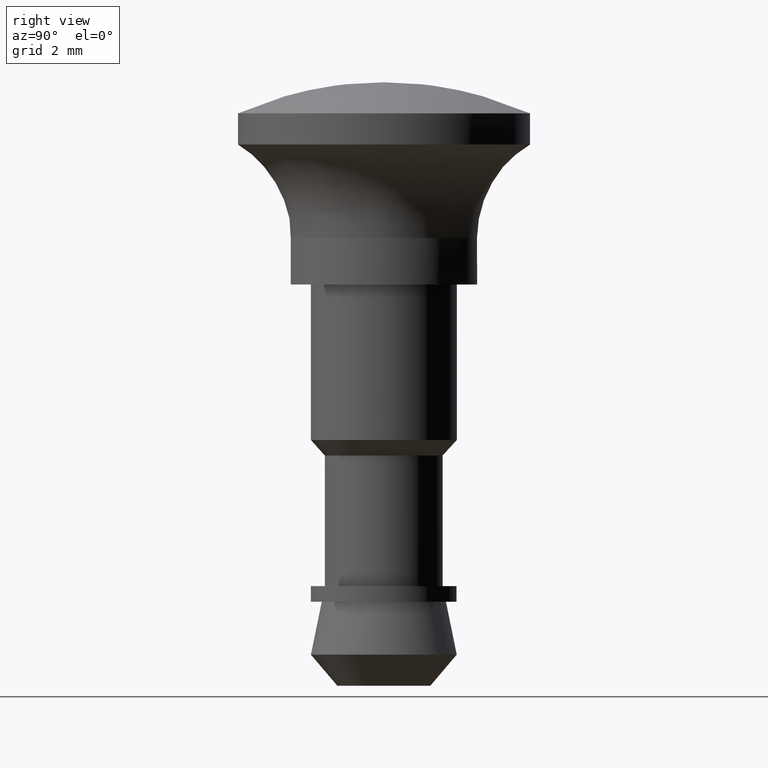
[diagram: clean part render]
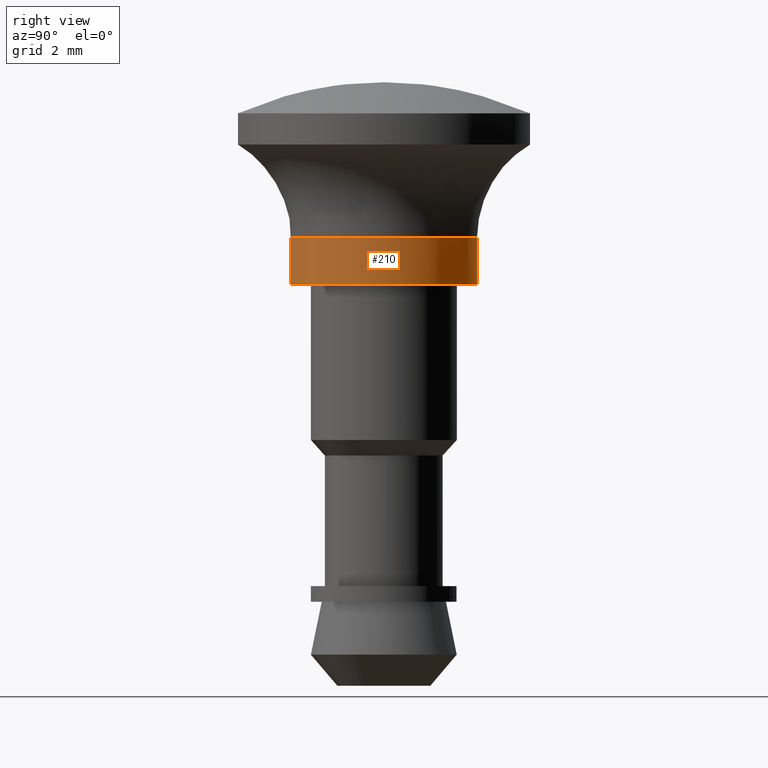
[diagram: same view with one face highlighted and labeled with its STEP entity id]
A machine part, right view. The second image highlights one B-rep face of the part: STEP entity #210.
In plain terms, the highlighted face is a freeform B-spline surface patch.
Its self-contained STEP definition (entity closure, byte-faithful):
#44=CARTESIAN_POINT('',(-2.808430736329971,-1.054853923174716,1.535450000000000));
#45=CARTESIAN_POINT('',(-2.966892058095451,-0.632968355146225,1.535450000000000));
#46=CARTESIAN_POINT('',(-2.994404395265600,-0.183145618604571,1.535450000000000));
#47=CARTESIAN_POINT('',(-3.177550013870171,2.811258776661029,1.535450000000001));
#48=CARTESIAN_POINT('',(-0.183145618604571,2.994404395265600,1.535450000000000));
#49=CARTESIAN_POINT('',(2.811258776661029,3.177550013870171,1.535450000000001));
#50=CARTESIAN_POINT('',(2.994404395265600,0.183145618604571,1.535450000000000));
#51=CARTESIAN_POINT('',(3.177550013870171,-2.811258776661029,1.535450000000001));
#52=CARTESIAN_POINT('',(0.183145618604571,-2.994404395265600,1.535450000000000));
#53=CARTESIAN_POINT('',(-2.808430736329971,-1.054853923174716,-0.038386250000000));
#54=CARTESIAN_POINT('',(-2.966892058095451,-0.632968355146225,-0.038386250000000));
#55=CARTESIAN_POINT('',(-2.994404395265600,-0.183145618604571,-0.038386250000000));
#56=CARTESIAN_POINT('',(-3.177550013870171,2.811258776661029,-0.038386250000000));
#57=CARTESIAN_POINT('',(-0.183145618604571,2.994404395265600,-0.038386250000000));
#58=CARTESIAN_POINT('',(2.811258776661029,3.177550013870171,-0.038386250000000));
#59=CARTESIAN_POINT('',(2.994404395265600,0.183145618604571,-0.038386250000000));
#60=CARTESIAN_POINT('',(3.177550013870171,-2.811258776661029,-0.038386250000000));
#61=CARTESIAN_POINT('',(0.183145618604571,-2.994404395265600,-0.038386250000000));
#69=(BOUNDED_SURFACE()B_SPLINE_SURFACE(2,1,((#44,#53),(#45,#54),(#46,#55),(#47,#56),(#48,#57),(#49,#58),(#50,#59),(#51,#60),(#52,#61)),.UNSPECIFIED.,.F.,.F.,.U.)B_SPLINE_SURFACE_WITH_KNOTS((3,2,2,2,3),(2,2),(0.0,0.994112549695428,5.964675298172567,10.935238046649710,15.905800795126851),(0.0,1.0),.UNSPECIFIED.)GEOMETRIC_REPRESENTATION_ITEM()RATIONAL_B_SPLINE_SURFACE(((0.906274169979695,0.906274169979695),(0.941421356237309,0.941421356237309),(1.0,1.0),(0.707106781186548,0.707106781186548),(1.0,1.0),(0.707106781186548,0.707106781186548),(1.0,1.0),(0.707106781186548,0.707106781186548),(1.0,1.0)))REPRESENTATION_ITEM('')SURFACE());
#70=CARTESIAN_POINT('',(-2.808430836194138,-1.054853657297454,1.498000000000001));
#71=VERTEX_POINT('',#70);
#72=CARTESIAN_POINT('',(-3.0,0.0,1.498000000000000));
#73=VERTEX_POINT('',#72);
#74=CARTESIAN_POINT('',(-2.808430836194138,-1.054853657297454,1.498000000000001));
#75=CARTESIAN_POINT('',(-3.000000000000001,-0.544821864819847,1.498000000000000));
#76=CARTESIAN_POINT('',(-3.0,0.0,1.498000000000000));
#84=(BOUNDED_CURVE()B_SPLINE_CURVE(2,(#74,#75,#76),.UNSPECIFIED.,.F.,.U.)B_SPLINE_CURVE_WITH_KNOTS((3,3),(0.940284200805494,1.0),.UNSPECIFIED.)CURVE()GEOMETRIC_REPRESENTATION_ITEM()RATIONAL_B_SPLINE_CURVE((0.893499591234335,0.930038589439614,1.0))REPRESENTATION_ITEM(''));
#85=EDGE_CURVE('',#71,#73,#84,.T.);
#86=ORIENTED_EDGE('',*,*,#85,.T.);
#87=CARTESIAN_POINT('',(-2.470599186242353,1.701804824575161,1.497997071134931));
#88=VERTEX_POINT('',#87);
#89=CARTESIAN_POINT('',(-3.0,0.0,1.498000000000000));
#90=CARTESIAN_POINT('',(-3.000000000000595,0.933245938866376,1.497998535567466));
#91=CARTESIAN_POINT('',(-2.470599186242354,1.701804824575161,1.497997071134931));
#99=(BOUNDED_CURVE()B_SPLINE_CURVE(2,(#89,#90,#91),.UNSPECIFIED.,.F.,.U.)B_SPLINE_CURVE_WITH_KNOTS((3,3),(0.0,0.097429828936804),.UNSPECIFIED.)CURVE()GEOMETRIC_REPRESENTATION_ITEM()RATIONAL_B_SPLINE_CURVE((1.0,0.885853855177021,0.860677625265231))REPRESENTATION_ITEM(''));
#100=EDGE_CURVE('',#73,#88,#99,.T.);
#101=ORIENTED_EDGE('',*,*,#100,.T.);
#102=CARTESIAN_POINT('',(1.840320043787088,2.369223952363005,1.497997005857969));
#103=VERTEX_POINT('',#102);
#104=CARTESIAN_POINT('',(-2.470599186242354,1.701804824575161,1.497997071134931));
#105=CARTESIAN_POINT('',(-1.576372868560510,3.000000000001109,1.497997054939149));
#106=CARTESIAN_POINT('',(4.636831E-013,3.000000000001525,1.497997031628090));
#107=CARTESIAN_POINT('',(1.028260355751189,3.000000000001798,1.497997016422400));
#108=CARTESIAN_POINT('',(1.840320043787088,2.369223952363005,1.497997005857970));
#116=(BOUNDED_CURVE()B_SPLINE_CURVE(2,(#104,#105,#106,#107,#108),.UNSPECIFIED.,.F.,.U.)B_SPLINE_CURVE_WITH_KNOTS((3,2,3),(0.097429828936804,0.250000000000000,0.356116021520993),.UNSPECIFIED.)CURVE()GEOMETRIC_REPRESENTATION_ITEM()RATIONAL_B_SPLINE_CURVE((0.860677625265231,0.821252926009526,1.0,0.875677347556155,0.856895697210534))REPRESENTATION_ITEM(''));
#117=EDGE_CURVE('',#88,#103,#116,.T.);
#118=ORIENTED_EDGE('',*,*,#117,.T.);
#119=CARTESIAN_POINT('',(3.0,0.0,1.498000000000000));
#120=VERTEX_POINT('',#119);
#121=CARTESIAN_POINT('',(1.840320043787088,2.369223952363005,1.497997005857970));
#122=CARTESIAN_POINT('',(3.000000000000771,1.468430143625183,1.497998502928985));
#123=CARTESIAN_POINT('',(3.0,0.0,1.498000000000000));
#131=(BOUNDED_CURVE()B_SPLINE_CURVE(2,(#121,#122,#123),.UNSPECIFIED.,.F.,.U.)B_SPLINE_CURVE_WITH_KNOTS((3,3),(0.356116021520993,0.500000000000000),.UNSPECIFIED.)CURVE()GEOMETRIC_REPRESENTATION_ITEM()RATIONAL_B_SPLINE_CURVE((0.856895697210534,0.831429433630393,1.0))REPRESENTATION_ITEM(''));
#132=EDGE_CURVE('',#103,#120,#131,.T.);
#133=ORIENTED_EDGE('',*,*,#132,.T.);
#134=CARTESIAN_POINT('',(0.183141592714504,-2.994404641494152,1.498000000000070));
#135=VERTEX_POINT('',#134);
#136=CARTESIAN_POINT('',(3.0,0.0,1.498000000000000));
#137=CARTESIAN_POINT('',(3.0,-2.822122002065718,1.498000000000001));
#138=CARTESIAN_POINT('',(0.183141592714504,-2.994404641494152,1.498000000000070));
#146=(BOUNDED_CURVE()B_SPLINE_CURVE(2,(#136,#137,#138),.UNSPECIFIED.,.F.,.U.)B_SPLINE_CURVE_WITH_KNOTS((3,3),(0.500000000000000,0.739333194226175),.UNSPECIFIED.)CURVE()GEOMETRIC_REPRESENTATION_ITEM()RATIONAL_B_SPLINE_CURVE((1.0,0.719603721496762,0.976072538860020))REPRESENTATION_ITEM(''));
#147=EDGE_CURVE('',#120,#135,#146,.T.);
#148=ORIENTED_EDGE('',*,*,#147,.T.);
#149=CARTESIAN_POINT('',(0.183141641266411,-2.994404638524721,6.938894E-018));
#150=VERTEX_POINT('',#149);
#151=CARTESIAN_POINT('',(0.183141592714504,-2.994404641494152,1.498000000000070));
#152=CARTESIAN_POINT('',(0.183141641266411,-2.994404638524721,6.938894E-018));
#153=QUASI_UNIFORM_CURVE('',1,(#151,#152),.UNSPECIFIED.,.F.,.U.);
#154=EDGE_CURVE('',#135,#150,#153,.T.);
#155=ORIENTED_EDGE('',*,*,#154,.T.);
#156=CARTESIAN_POINT('',(3.0,0.0,0.0));
#157=VERTEX_POINT('',#156);
#158=CARTESIAN_POINT('',(3.0,0.0,0.0));
#159=CARTESIAN_POINT('',(3.000000000000000,-2.822121956221736,0.0));
#160=CARTESIAN_POINT('',(0.183141641266411,-2.994404638524720,6.938894E-018));
#168=(BOUNDED_CURVE()B_SPLINE_CURVE(2,(#158,#159,#160),.UNSPECIFIED.,.F.,.U.)B_SPLINE_CURVE_WITH_KNOTS((3,3),(0.500000000000000,0.739333191428464),.UNSPECIFIED.)CURVE()GEOMETRIC_REPRESENTATION_ITEM()RATIONAL_B_SPLINE_CURVE((1.0,0.719603724774485,0.976072532863981))REPRESENTATION_ITEM(''));
#169=EDGE_CURVE('',#157,#150,#168,.T.);
#170=ORIENTED_EDGE('',*,*,#169,.F.);
#171=CARTESIAN_POINT('',(-3.0,0.0,0.0));
#172=VERTEX_POINT('',#171);
#173=CARTESIAN_POINT('',(-3.0,0.0,0.0));
#174=CARTESIAN_POINT('',(-3.0,3.0,0.0));
#175=CARTESIAN_POINT('',(0.0,3.0,0.0));
#176=CARTESIAN_POINT('',(3.0,3.0,0.0));
#177=CARTESIAN_POINT('',(3.0,0.0,0.0));
#185=(BOUNDED_CURVE()B_SPLINE_CURVE(2,(#173,#174,#175,#176,#177),.UNSPECIFIED.,.F.,.U.)B_SPLINE_CURVE_WITH_KNOTS((3,2,3),(0.0,0.250000000000000,0.500000000000000),.UNSPECIFIED.)CURVE()GEOMETRIC_REPRESENTATION_ITEM()RATIONAL_B_SPLINE_CURVE((1.0,0.707106781186548,1.0,0.707106781186548,1.0))REPRESENTATION_ITEM(''));
#186=EDGE_CURVE('',#172,#157,#185,.T.);
#187=ORIENTED_EDGE('',*,*,#186,.F.);
#188=CARTESIAN_POINT('',(-2.808430834989721,-1.054853660504082,9.570633E-017));
#189=VERTEX_POINT('',#188);
#190=CARTESIAN_POINT('',(-2.808430834989720,-1.054853660504082,9.570633E-017));
#191=CARTESIAN_POINT('',(-3.000000000000000,-0.544821868358178,0.0));
#192=CARTESIAN_POINT('',(-3.0,0.0,0.0));
#200=(BOUNDED_CURVE()B_SPLINE_CURVE(2,(#190,#191,#192),.UNSPECIFIED.,.F.,.U.)B_SPLINE_CURVE_WITH_KNOTS((3,3),(0.940284200444804,1.0),.UNSPECIFIED.)CURVE()GEOMETRIC_REPRESENTATION_ITEM()RATIONAL_B_SPLINE_CURVE((0.893499590792936,0.930038589017039,1.0))REPRESENTATION_ITEM(''));
#201=EDGE_CURVE('',#189,#172,#200,.T.);
#202=ORIENTED_EDGE('',*,*,#201,.F.);
#203=CARTESIAN_POINT('',(-2.808430836194138,-1.054853657297454,1.498000000000001));
#204=CARTESIAN_POINT('',(-2.808430834989721,-1.054853660504082,9.570633E-017));
#205=QUASI_UNIFORM_CURVE('',1,(#203,#204),.UNSPECIFIED.,.F.,.U.);
#206=EDGE_CURVE('',#71,#189,#205,.T.);
#207=ORIENTED_EDGE('',*,*,#206,.F.);
#208=EDGE_LOOP('',(#86,#101,#118,#133,#148,#155,#170,#187,#202,#207));
#209=FACE_OUTER_BOUND('',#208,.T.);
#210=ADVANCED_FACE('',(#209),#69,.T.);